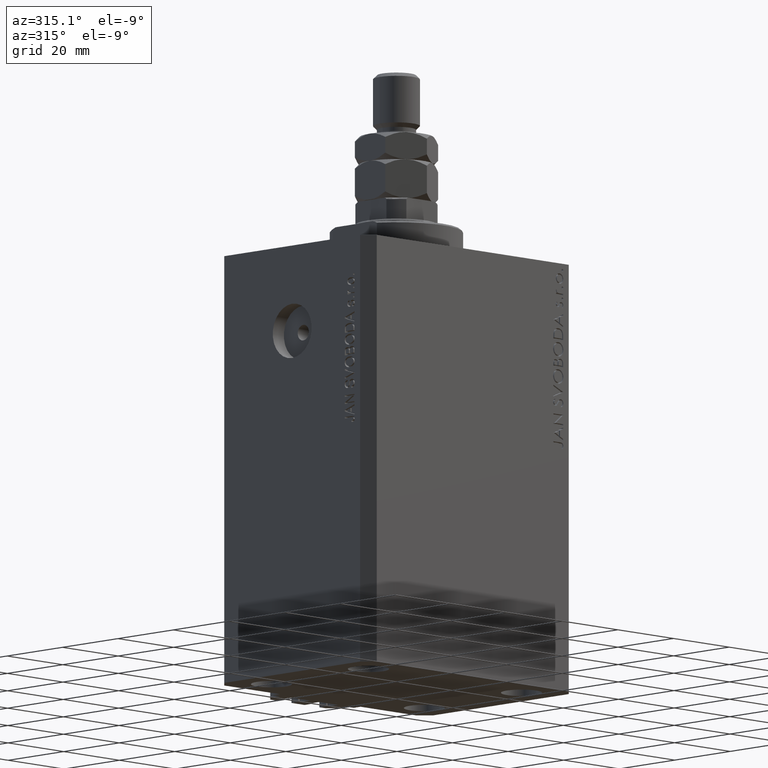
[diagram: clean part render]
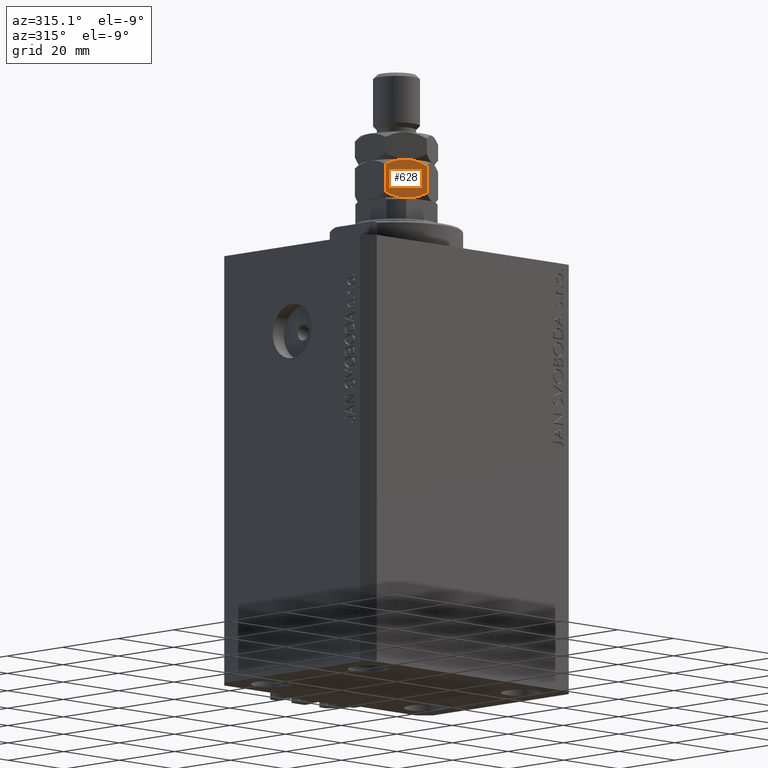
[diagram: same view with one face highlighted and labeled with its STEP entity id]
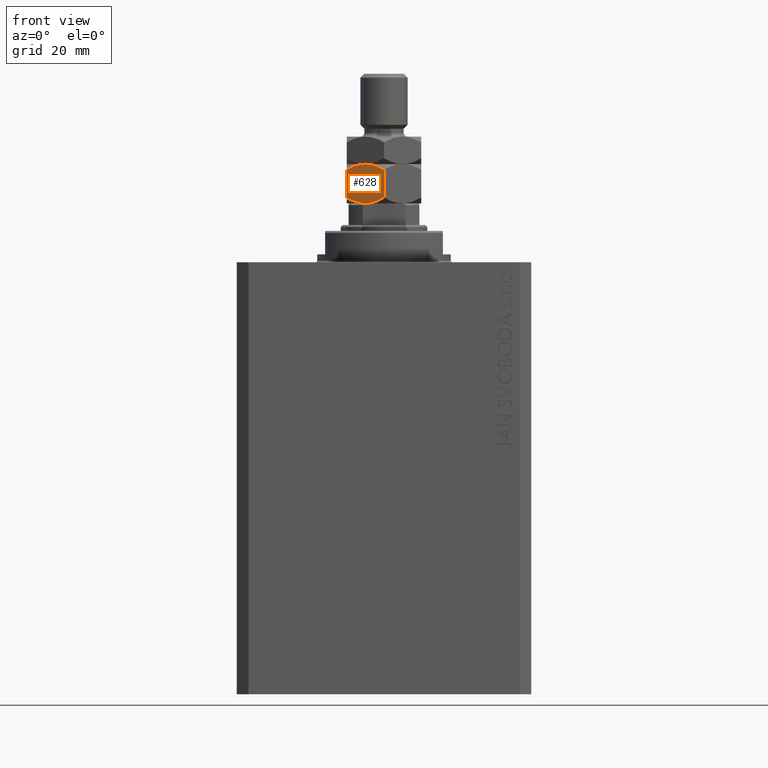
[diagram: same view with one face highlighted and labeled with its STEP entity id]
A machine part, auxiliary view. The second image highlights one B-rep face of the part: STEP entity #628.
A second angle (front view) of the same face is appended — the face is thin or edge-on in the first view.
In plain terms, the highlighted planar face has unit normal (0.5, 0.866, 0).
Its self-contained STEP definition (entity closure, byte-faithful):
#628 = ADVANCED_FACE ( 'NONE', ( #29206 ), #21060, .F. ) ;
#1080 = CARTESIAN_POINT ( 'NONE',  ( -2.690254945947328391, -9.416435697371479563, 0.2834621384311885595 ) ) ;
#1609 = CARTESIAN_POINT ( 'NONE',  ( -6.408273631871771236, -7.269836608200942685, 9.820258145287965590 ) ) ;
#3278 = CARTESIAN_POINT ( 'NONE',  ( -3.923784602134047894, -8.704257018318688921, 10.00000000000000178 ) ) ;
#3556 = CARTESIAN_POINT ( 'NONE',  ( -7.990178599141542826, -6.356523349515333265, 0.6716369694512676070 ) ) ;
#4398 = LINE ( 'NONE', #45120, #36426 ) ;
#5019 = CARTESIAN_POINT ( 'NONE',  ( -4.333978297711725602, -8.467431577757036365, 9.136662057716388954E-16 ) ) ;
#5547 = CARTESIAN_POINT ( 'NONE',  ( -9.500000000000000000, -5.484827557301445999, 8.530344885397115107 ) ) ;
#6745 = CARTESIAN_POINT ( 'NONE',  ( -3.111617971331826382, -9.173161641239186537, 9.854124384224533628 ) ) ;
#8206 = ORIENTED_EDGE ( 'NONE', *, *, #36780, .F. ) ;
#8834 = EDGE_LOOP ( 'NONE', ( #14608, #8206, #26767, #19165, #37375, #28702 ) ) ;
#9488 = CARTESIAN_POINT ( 'NONE',  ( -7.993405681187616629, -6.354660192827335408, 9.325825117528722785 ) ) ;
#10826 = LINE ( 'NONE', #21940, #18042 ) ;
#11881 = B_SPLINE_CURVE_WITH_KNOTS ( 'NONE', 3,
 ( #5547, #42814, #9488, #39128, #1609, #31739, #46760, #20619 ),
 .UNSPECIFIED., .F., .F.,
 ( 4, 2, 2, 4 ),
 ( 2.544312669948822529E-07, 0.002843014744722344167, 0.004264394901450020009, 0.005685775058177695851 ),
 .UNSPECIFIED. ) ;
#13287 = B_SPLINE_CURVE_WITH_KNOTS ( 'NONE', 3,
 ( #40552, #3278, #6745, #43999, #48431, #29475 ),
 .UNSPECIFIED., .F., .F.,
 ( 4, 2, 4 ),
 ( 0.005685775058177695851, 0.008508623398180325398, 0.01133147173818295494 ),
 .UNSPECIFIED. ) ;
#13661 = CARTESIAN_POINT ( 'NONE',  ( -2.946964139499808652E-15, -10.96965511460288667, 1.469655114602881563 ) ) ;
#14133 = CARTESIAN_POINT ( 'NONE',  ( -9.500000000000000000, -5.484827557301445999, 10.00000000000000000 ) ) ;
#14608 = ORIENTED_EDGE ( 'NONE', *, *, #34870, .F. ) ;
#15199 = VERTEX_POINT ( 'NONE', #40549 ) ;
#16483 = B_SPLINE_CURVE_WITH_KNOTS ( 'NONE', 3,
 ( #33193, #29511, #22563, #3556, #44276, #33669 ),
 .UNSPECIFIED., .F., .F.,
 ( 4, 2, 4 ),
 ( 0.005685775058177687177, 0.008508623398180320194, 0.01133147173818295321 ),
 .UNSPECIFIED. ) ;
#18042 = VECTOR ( 'NONE', #32574, 1000.000000000000000 ) ;
#19165 = ORIENTED_EDGE ( 'NONE', *, *, #30954, .F. ) ;
#19229 = DIRECTION ( 'NONE',  ( -0.000000000000000000, -0.000000000000000000, -1.000000000000000000 ) ) ;
#19846 = CARTESIAN_POINT ( 'NONE',  ( -0.7448681452486625165, -10.53960529043279770, 1.039605290432793705 ) ) ;
#20619 = CARTESIAN_POINT ( 'NONE',  ( -4.749999999999998224, -8.227241335952168555, 10.00000000000000000 ) ) ;
#21060 = PLANE ( 'NONE',  #47528 ) ;
#21211 = CARTESIAN_POINT ( 'NONE',  ( -3.001642536556159024E-15, -10.96965511460288667, 8.530344885397118659 ) ) ;
#21940 = CARTESIAN_POINT ( 'NONE',  ( -9.500000000000000000, -5.484827557301445999, 10.00000000000000000 ) ) ;
#22563 = CARTESIAN_POINT ( 'NONE',  ( -6.388382028668172730, -7.281321030665154126, 0.1458756157754690086 ) ) ;
#23056 = CARTESIAN_POINT ( 'NONE',  ( -3.911732050025008789, -8.711215562523268119, 0.03770576873300111181 ) ) ;
#26767 = ORIENTED_EDGE ( 'NONE', *, *, #44678, .F. ) ;
#26878 = VERTEX_POINT ( 'NONE', #32645 ) ;
#27231 = EDGE_CURVE ( 'NONE', #28751, #32335, #16483, .T. ) ;
#28702 = ORIENTED_EDGE ( 'NONE', *, *, #27231, .F. ) ;
#28751 = VERTEX_POINT ( 'NONE', #43895 ) ;
#28820 = EDGE_CURVE ( 'NONE', #26878, #32335, #10826, .T. ) ;
#29206 = FACE_OUTER_BOUND ( 'NONE', #8834, .T. ) ;
#29475 = CARTESIAN_POINT ( 'NONE',  ( -3.001642536556159024E-15, -10.96965511460288667, 8.530344885397118659 ) ) ;
#29511 = CARTESIAN_POINT ( 'NONE',  ( -5.576215397865947665, -7.750225653585648189, 8.690558038829119507E-16 ) ) ;
#30954 = EDGE_CURVE ( 'NONE', #26878, #15199, #11881, .T. ) ;
#31739 = CARTESIAN_POINT ( 'NONE',  ( -5.588267949974986770, -7.743267109381074320, 9.962294231267001976 ) ) ;
#32335 = VERTEX_POINT ( 'NONE', #42536 ) ;
#32574 = DIRECTION ( 'NONE',  ( -0.000000000000000000, -0.000000000000000000, -1.000000000000000000 ) ) ;
#32645 = CARTESIAN_POINT ( 'NONE',  ( -9.500000000000000000, -5.484827557301445999, 8.530344885397115107 ) ) ;
#33193 = CARTESIAN_POINT ( 'NONE',  ( -4.749999999999998224, -8.227241335952168555, 0.000000000000000000 ) ) ;
#33669 = CARTESIAN_POINT ( 'NONE',  ( -9.500000000000000000, -5.484827557301445999, 1.469655114602884893 ) ) ;
#33915 = VERTEX_POINT ( 'NONE', #21211 ) ;
#34870 = EDGE_CURVE ( 'NONE', #46327, #28751, #37627, .T. ) ;
#36426 = VECTOR ( 'NONE', #19229, 1000.000000000000000 ) ;
#36598 = DIRECTION ( 'NONE',  ( -0.8660254037844387076, 0.4999999999999998890, 0.000000000000000000 ) ) ;
#36780 = EDGE_CURVE ( 'NONE', #33915, #46327, #4398, .T. ) ;
#37375 = ORIENTED_EDGE ( 'NONE', *, *, #28820, .T. ) ;
#37627 = B_SPLINE_CURVE_WITH_KNOTS ( 'NONE', 3,
 ( #38105, #19846, #42041, #1080, #41797, #23056, #5019, #46225 ),
 .UNSPECIFIED., .F., .F.,
 ( 4, 2, 2, 4 ),
 ( 2.544312669954764994E-07, 0.002843014744722341131, 0.004264394901450013937, 0.005685775058177687177 ),
 .UNSPECIFIED. ) ;
#38105 = CARTESIAN_POINT ( 'NONE',  ( -2.946964139499808652E-15, -10.96965511460288667, 1.469655114602881563 ) ) ;
#39128 = CARTESIAN_POINT ( 'NONE',  ( -6.809745054052672053, -7.038046974532858435, 9.716537861568809831 ) ) ;
#40549 = CARTESIAN_POINT ( 'NONE',  ( -4.749999999999998224, -8.227241335952168555, 10.00000000000000000 ) ) ;
#40552 = CARTESIAN_POINT ( 'NONE',  ( -4.749999999999998224, -8.227241335952168555, 10.00000000000000000 ) ) ;
#41797 = CARTESIAN_POINT ( 'NONE',  ( -3.091726368128225211, -9.184646063703393537, 0.1797418547120354371 ) ) ;
#42041 = CARTESIAN_POINT ( 'NONE',  ( -1.506594318812384703, -10.09982247907699993, 0.6741748824712766597 ) ) ;
#42536 = CARTESIAN_POINT ( 'NONE',  ( -9.500000000000000000, -5.484827557301445999, 1.469655114602884893 ) ) ;
#42814 = CARTESIAN_POINT ( 'NONE',  ( -8.755131854751340370, -5.914877381471537632, 8.960394709567209404 ) ) ;
#43895 = CARTESIAN_POINT ( 'NONE',  ( -4.749999999999998224, -8.227241335952168555, 0.000000000000000000 ) ) ;
#43999 = CARTESIAN_POINT ( 'NONE',  ( -1.509821400858457840, -10.09795932238900029, 9.328363030548734613 ) ) ;
#44218 = DIRECTION ( 'NONE',  ( 0.4999999999999998890, 0.8660254037844387076, -0.000000000000000000 ) ) ;
#44276 = CARTESIAN_POINT ( 'NONE',  ( -8.755994125639036341, -5.914379549142410930, 1.040103122761829813 ) ) ;
#44678 = EDGE_CURVE ( 'NONE', #15199, #33915, #13287, .T. ) ;
#45120 = CARTESIAN_POINT ( 'NONE',  ( -3.035766082959412415E-15, -10.96965511460288667, 10.00000000000000000 ) ) ;
#46225 = CARTESIAN_POINT ( 'NONE',  ( -4.749999999999998224, -8.227241335952168555, 0.000000000000000000 ) ) ;
#46327 = VERTEX_POINT ( 'NONE', #13661 ) ;
#46760 = CARTESIAN_POINT ( 'NONE',  ( -5.166021702288271733, -7.987051094147306074, 10.00000000000000000 ) ) ;
#47528 = AXIS2_PLACEMENT_3D ( 'NONE', #14133, #44218, #36598 ) ;
#48431 = CARTESIAN_POINT ( 'NONE',  ( -0.7440058743609659908, -10.54010312276191996, 8.959896877238168855 ) ) ;